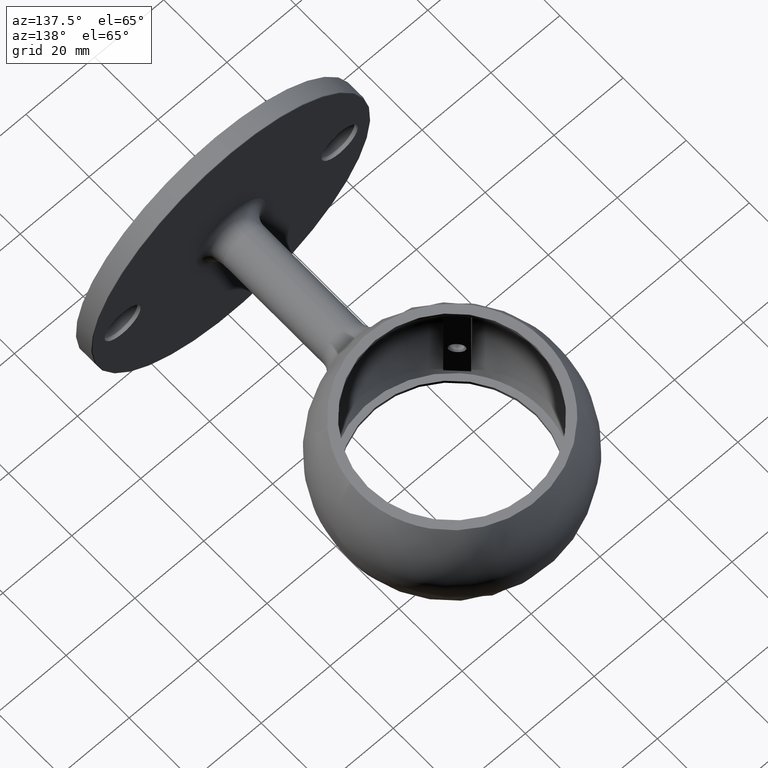
[diagram: clean part render]
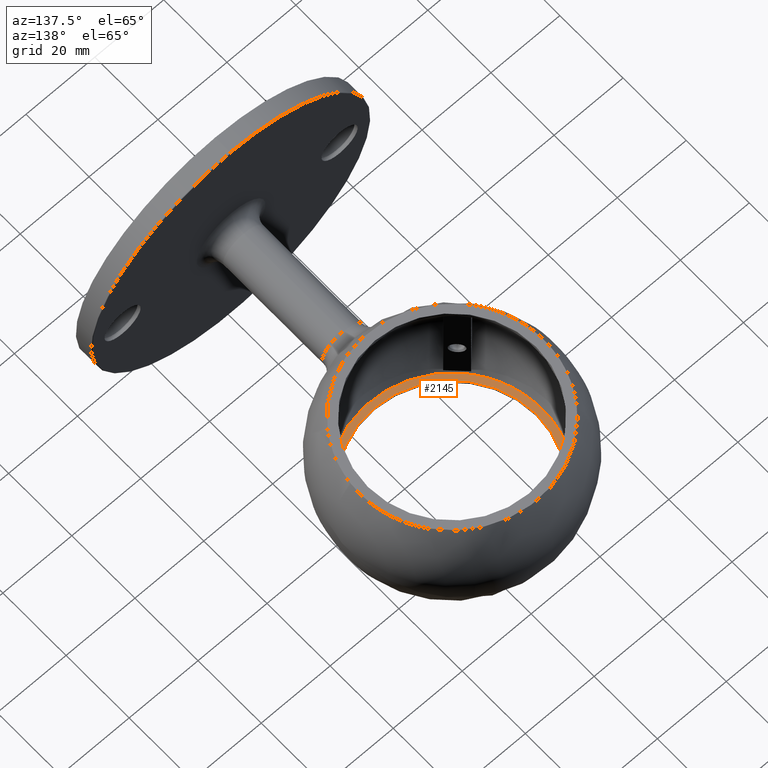
[diagram: same view with one face highlighted and labeled with its STEP entity id]
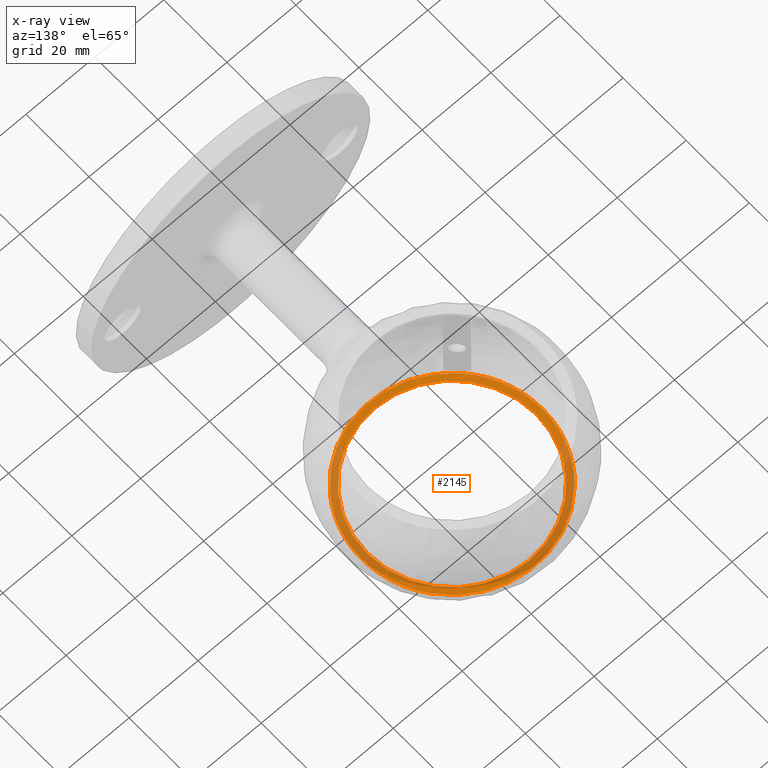
[diagram: x-ray of the same camera — body ghosted, the highlighted face saturated]
A machine part, auxiliary view. The second image highlights one B-rep face of the part: STEP entity #2145.
The next image is the same camera in x-ray: the body ghosted, the highlighted face saturated — about 49% of this face is hidden behind the body in this view.
In plain terms, the highlighted planar face has unit normal (0, 0, 1).
Its self-contained STEP definition (entity closure, byte-faithful):
#484 = CIRCLE ( 'NONE', #4594, 24.44999999999999929 ) ;
#618 = CARTESIAN_POINT ( 'NONE',  ( 24.44999999999999929, 75.00000000000000000, -16.50000000000000000 ) ) ;
#828 = EDGE_CURVE ( 'NONE', #5182, #5182, #484, .T. ) ;
#839 = DIRECTION ( 'NONE',  ( -0.000000000000000000, -0.000000000000000000, 1.000000000000000000 ) ) ;
#1063 = DIRECTION ( 'NONE',  ( -0.000000000000000000, -0.000000000000000000, 1.000000000000000000 ) ) ;
#1306 = CARTESIAN_POINT ( 'NONE',  ( 26.24404694402142368, 75.00000000000000000, -16.50000000000000000 ) ) ;
#1667 = AXIS2_PLACEMENT_3D ( 'NONE', #3978, #839, #4756 ) ;
#1694 = FACE_BOUND ( 'NONE', #6202, .T. ) ;
#1847 = CARTESIAN_POINT ( 'NONE',  ( 0.000000000000000000, 75.00000000000000000, -16.50000000000000000 ) ) ;
#2145 = ADVANCED_FACE ( 'NONE', ( #6456, #1694 ), #8985, .T. ) ;
#3414 = DIRECTION ( 'NONE',  ( 1.000000000000000000, 0.000000000000000000, 0.000000000000000000 ) ) ;
#3463 = DIRECTION ( 'NONE',  ( 1.000000000000000000, 0.000000000000000000, 0.000000000000000000 ) ) ;
#3849 = VERTEX_POINT ( 'NONE', #1306 ) ;
#3978 = CARTESIAN_POINT ( 'NONE',  ( 0.000000000000000000, 75.00000000000000000, -16.50000000000000000 ) ) ;
#4343 = CIRCLE ( 'NONE', #1667, 26.24404694402142368 ) ;
#4594 = AXIS2_PLACEMENT_3D ( 'NONE', #1847, #1063, #3414 ) ;
#4756 = DIRECTION ( 'NONE',  ( 1.000000000000000000, 0.000000000000000000, 0.000000000000000000 ) ) ;
#5168 = DIRECTION ( 'NONE',  ( 0.000000000000000000, -0.000000000000000000, 1.000000000000000000 ) ) ;
#5182 = VERTEX_POINT ( 'NONE', #618 ) ;
#6202 = EDGE_LOOP ( 'NONE', ( #8832 ) ) ;
#6456 = FACE_OUTER_BOUND ( 'NONE', #7845, .T. ) ;
#7025 = AXIS2_PLACEMENT_3D ( 'NONE', #9777, #5168, #3463 ) ;
#7824 = ORIENTED_EDGE ( 'NONE', *, *, #8775, .T. ) ;
#7845 = EDGE_LOOP ( 'NONE', ( #7824 ) ) ;
#8775 = EDGE_CURVE ( 'NONE', #3849, #3849, #4343, .T. ) ;
#8832 = ORIENTED_EDGE ( 'NONE', *, *, #828, .F. ) ;
#8985 = PLANE ( 'NONE',  #7025 ) ;
#9777 = CARTESIAN_POINT ( 'NONE',  ( 0.000000000000000000, 0.000000000000000000, -16.50000000000000000 ) ) ;